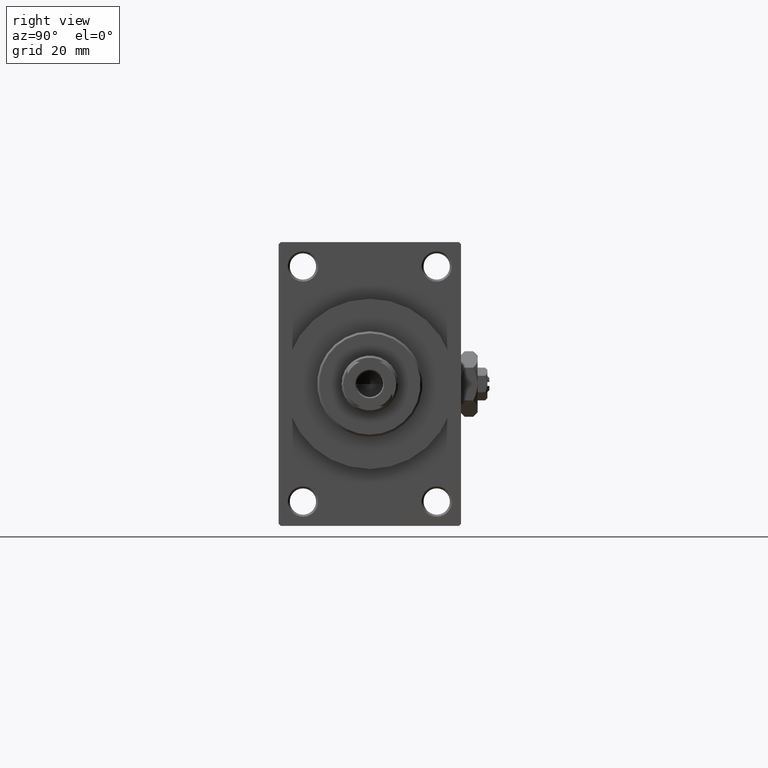
[diagram: clean part render]
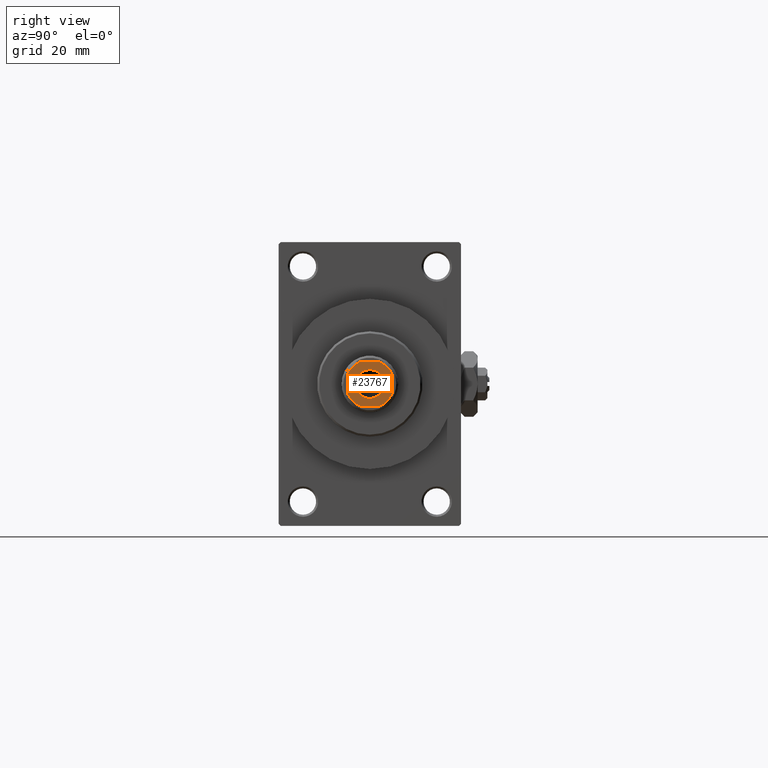
[diagram: same view with one face highlighted and labeled with its STEP entity id]
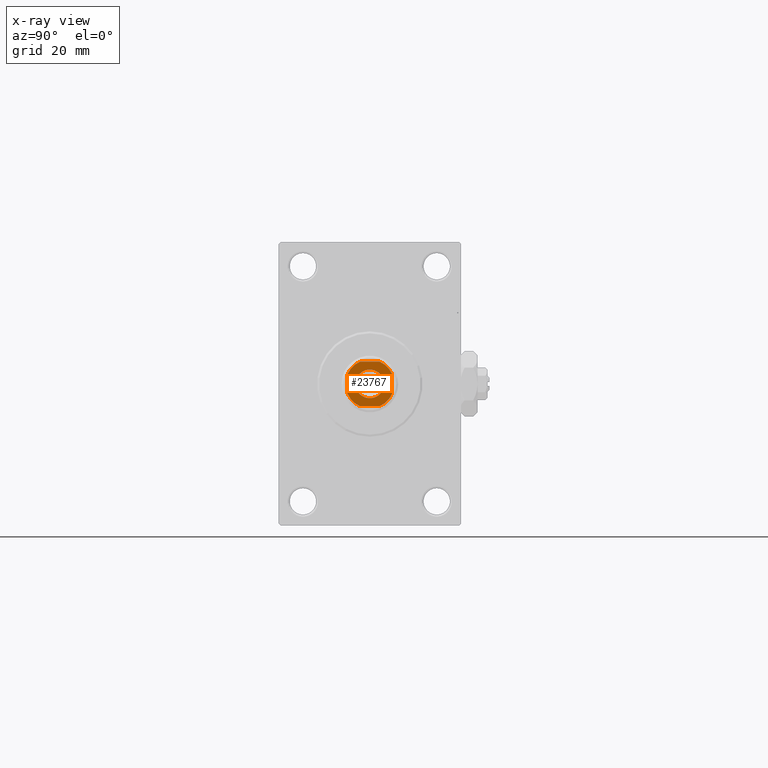
[diagram: x-ray of the same camera — body ghosted, the highlighted face saturated]
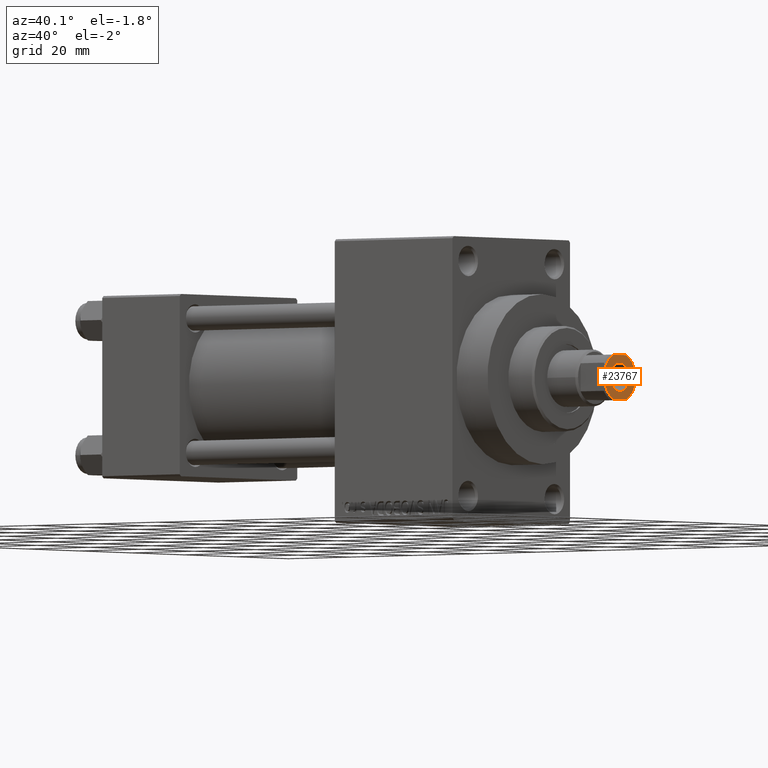
[diagram: same view with one face highlighted and labeled with its STEP entity id]
A machine part, right view. The second image highlights one B-rep face of the part: STEP entity #23767.
The next image is the same camera in x-ray: the body ghosted, the highlighted face saturated — about 0% of this face is hidden behind the body in this view.
A second angle (auxiliary view) of the same face is appended — the face is thin or edge-on in the first view.
In plain terms, the highlighted planar face has unit normal (1, 0, 0).
Its self-contained STEP definition (entity closure, byte-faithful):
#54 = VERTEX_POINT ( 'NONE', #23593 ) ;
#1730 = EDGE_CURVE ( 'NONE', #22571, #32382, #10138, .T. ) ;
#1825 = DIRECTION ( 'NONE',  ( -0.000000000000000000, 0.000000000000000000, 1.000000000000000000 ) ) ;
#1903 = FACE_BOUND ( 'NONE', #47159, .T. ) ;
#3432 = VECTOR ( 'NONE', #25303, 1000.000000000000000 ) ;
#4090 = VECTOR ( 'NONE', #30186, 1000.000000000000000 ) ;
#4258 = DIRECTION ( 'NONE',  ( 1.000000000000000000, 0.000000000000000000, 0.000000000000000000 ) ) ;
#4661 = AXIS2_PLACEMENT_3D ( 'NONE', #23132, #8953, #4258 ) ;
#4879 = ORIENTED_EDGE ( 'NONE', *, *, #21666, .T. ) ;
#6413 = EDGE_CURVE ( 'NONE', #22238, #14577, #41675, .T. ) ;
#6485 = VERTEX_POINT ( 'NONE', #7266 ) ;
#6564 = EDGE_CURVE ( 'NONE', #14577, #26650, #31817, .T. ) ;
#7266 = CARTESIAN_POINT ( 'NONE',  ( -3.550000000000011813, 4.347496136973118171E-16, 123.0000000000000000 ) ) ;
#8901 = DIRECTION ( 'NONE',  ( 1.000000000000000000, 0.000000000000000000, 0.000000000000000000 ) ) ;
#8953 = DIRECTION ( 'NONE',  ( -0.000000000000000000, 0.000000000000000000, 1.000000000000000000 ) ) ;
#8997 = EDGE_CURVE ( 'NONE', #26650, #22571, #28952, .T. ) ;
#10138 = LINE ( 'NONE', #14353, #3432 ) ;
#10218 = LINE ( 'NONE', #29571, #19468 ) ;
#10341 = CARTESIAN_POINT ( 'NONE',  ( 5.499999999999999112, 5.500000000000000888, 123.0000000000000000 ) ) ;
#10370 = ORIENTED_EDGE ( 'NONE', *, *, #8997, .T. ) ;
#10835 = ORIENTED_EDGE ( 'NONE', *, *, #19726, .T. ) ;
#10928 = VERTEX_POINT ( 'NONE', #22719 ) ;
#11171 = CARTESIAN_POINT ( 'NONE',  ( -2.397915761656381761, -5.500000000000000000, 123.0000000000000000 ) ) ;
#12619 = CARTESIAN_POINT ( 'NONE',  ( 0.000000000000000000, 0.000000000000000000, 123.0000000000000000 ) ) ;
#13380 = CIRCLE ( 'NONE', #4661, 6.000000000000008882 ) ;
#13566 = FACE_OUTER_BOUND ( 'NONE', #33214, .T. ) ;
#14353 = CARTESIAN_POINT ( 'NONE',  ( -5.499999999999999112, -5.500000000000000000, 123.0000000000000000 ) ) ;
#14577 = VERTEX_POINT ( 'NONE', #26054 ) ;
#15548 = CARTESIAN_POINT ( 'NONE',  ( 0.000000000000000000, 0.000000000000000000, 123.0000000000000000 ) ) ;
#16920 = ORIENTED_EDGE ( 'NONE', *, *, #1730, .T. ) ;
#17037 = PLANE ( 'NONE',  #37228 ) ;
#17826 = CARTESIAN_POINT ( 'NONE',  ( 0.000000000000000000, 0.000000000000000000, 123.0000000000000000 ) ) ;
#19468 = VECTOR ( 'NONE', #44716, 1000.000000000000000 ) ;
#19726 = EDGE_CURVE ( 'NONE', #46714, #6485, #22203, .T. ) ;
#19824 = AXIS2_PLACEMENT_3D ( 'NONE', #17826, #28773, #47401 ) ;
#21666 = EDGE_CURVE ( 'NONE', #32382, #54, #13380, .T. ) ;
#22203 = CIRCLE ( 'NONE', #19824, 3.550000000000011813 ) ;
#22238 = VERTEX_POINT ( 'NONE', #37052 ) ;
#22571 = VERTEX_POINT ( 'NONE', #11171 ) ;
#22719 = CARTESIAN_POINT ( 'NONE',  ( 2.397915761656340017, 5.500000000000000888, 123.0000000000000000 ) ) ;
#23132 = CARTESIAN_POINT ( 'NONE',  ( 0.000000000000000000, 0.000000000000000000, 123.0000000000000000 ) ) ;
#23593 = CARTESIAN_POINT ( 'NONE',  ( 5.500000000000000000, -2.397915761656381761, 123.0000000000000000 ) ) ;
#23767 = ADVANCED_FACE ( 'NONE', ( #1903, #13566 ), #17037, .T. ) ;
#24315 = CIRCLE ( 'NONE', #30642, 3.550000000000011813 ) ;
#24374 = DIRECTION ( 'NONE',  ( 1.577021341797097560E-16, -1.000000000000000000, 0.000000000000000000 ) ) ;
#24380 = CIRCLE ( 'NONE', #31489, 5.999999999999992006 ) ;
#24422 = DIRECTION ( 'NONE',  ( 1.000000000000000000, 0.000000000000000000, 0.000000000000000000 ) ) ;
#25303 = DIRECTION ( 'NONE',  ( 1.000000000000000000, 0.000000000000000000, 0.000000000000000000 ) ) ;
#26054 = CARTESIAN_POINT ( 'NONE',  ( -5.500000000000000000, 2.397915761656292499, 123.0000000000000000 ) ) ;
#26650 = VERTEX_POINT ( 'NONE', #41072 ) ;
#27570 = EDGE_CURVE ( 'NONE', #10928, #22238, #10218, .T. ) ;
#28272 = DIRECTION ( 'NONE',  ( -0.000000000000000000, 0.000000000000000000, 1.000000000000000000 ) ) ;
#28325 = DIRECTION ( 'NONE',  ( 0.000000000000000000, -0.000000000000000000, -1.000000000000000000 ) ) ;
#28356 = VERTEX_POINT ( 'NONE', #33310 ) ;
#28773 = DIRECTION ( 'NONE',  ( 0.000000000000000000, -0.000000000000000000, -1.000000000000000000 ) ) ;
#28952 = CIRCLE ( 'NONE', #32098, 6.000000000000008882 ) ;
#29571 = CARTESIAN_POINT ( 'NONE',  ( -5.500000000000000888, 5.500000000000000000, 123.0000000000000000 ) ) ;
#30186 = DIRECTION ( 'NONE',  ( -1.577021341797097560E-16, 1.000000000000000000, -0.000000000000000000 ) ) ;
#30291 = ORIENTED_EDGE ( 'NONE', *, *, #48401, .T. ) ;
#30307 = EDGE_CURVE ( 'NONE', #6485, #46714, #24315, .T. ) ;
#30642 = AXIS2_PLACEMENT_3D ( 'NONE', #47192, #28325, #36004 ) ;
#31072 = CARTESIAN_POINT ( 'NONE',  ( -5.500000000000000888, 5.500000000000000000, 123.0000000000000000 ) ) ;
#31489 = AXIS2_PLACEMENT_3D ( 'NONE', #12619, #28272, #8901 ) ;
#31817 = LINE ( 'NONE', #31072, #34504 ) ;
#32098 = AXIS2_PLACEMENT_3D ( 'NONE', #15548, #1825, #24422 ) ;
#32382 = VERTEX_POINT ( 'NONE', #45731 ) ;
#33214 = EDGE_LOOP ( 'NONE', ( #30291, #42755, #42341, #48443, #40152, #10370, #16920, #4879 ) ) ;
#33310 = CARTESIAN_POINT ( 'NONE',  ( 5.500000000000000000, 2.397915761656341793, 123.0000000000000000 ) ) ;
#34504 = VECTOR ( 'NONE', #24374, 1000.000000000000000 ) ;
#34548 = CARTESIAN_POINT ( 'NONE',  ( 0.000000000000000000, 0.000000000000000000, 123.0000000000000000 ) ) ;
#34788 = EDGE_CURVE ( 'NONE', #28356, #10928, #24380, .T. ) ;
#35299 = CARTESIAN_POINT ( 'NONE',  ( 3.550000000000011813, 0.000000000000000000, 123.0000000000000000 ) ) ;
#36004 = DIRECTION ( 'NONE',  ( 1.000000000000000000, 0.000000000000000000, 0.000000000000000000 ) ) ;
#37052 = CARTESIAN_POINT ( 'NONE',  ( -2.397915761656291167, 5.500000000000000888, 123.0000000000000000 ) ) ;
#37228 = AXIS2_PLACEMENT_3D ( 'NONE', #47594, #40141, #43856 ) ;
#40141 = DIRECTION ( 'NONE',  ( -0.000000000000000000, 0.000000000000000000, 1.000000000000000000 ) ) ;
#40152 = ORIENTED_EDGE ( 'NONE', *, *, #6564, .T. ) ;
#41072 = CARTESIAN_POINT ( 'NONE',  ( -5.500000000000000000, -2.397915761656382649, 123.0000000000000000 ) ) ;
#41525 = DIRECTION ( 'NONE',  ( 1.000000000000000000, 0.000000000000000000, 0.000000000000000000 ) ) ;
#41675 = CIRCLE ( 'NONE', #48028, 5.999999999999973355 ) ;
#42018 = DIRECTION ( 'NONE',  ( -0.000000000000000000, 0.000000000000000000, 1.000000000000000000 ) ) ;
#42341 = ORIENTED_EDGE ( 'NONE', *, *, #27570, .T. ) ;
#42755 = ORIENTED_EDGE ( 'NONE', *, *, #34788, .T. ) ;
#43856 = DIRECTION ( 'NONE',  ( 1.000000000000000000, 0.000000000000000000, 0.000000000000000000 ) ) ;
#44716 = DIRECTION ( 'NONE',  ( -1.000000000000000000, -7.885106708985487801E-17, -0.000000000000000000 ) ) ;
#45731 = CARTESIAN_POINT ( 'NONE',  ( 2.397915761656381761, -5.500000000000000000, 123.0000000000000000 ) ) ;
#45831 = ORIENTED_EDGE ( 'NONE', *, *, #30307, .T. ) ;
#46714 = VERTEX_POINT ( 'NONE', #35299 ) ;
#47159 = EDGE_LOOP ( 'NONE', ( #10835, #45831 ) ) ;
#47192 = CARTESIAN_POINT ( 'NONE',  ( 0.000000000000000000, 0.000000000000000000, 123.0000000000000000 ) ) ;
#47401 = DIRECTION ( 'NONE',  ( 1.000000000000000000, 0.000000000000000000, 0.000000000000000000 ) ) ;
#47594 = CARTESIAN_POINT ( 'NONE',  ( 0.000000000000000000, 0.000000000000000000, 123.0000000000000000 ) ) ;
#48028 = AXIS2_PLACEMENT_3D ( 'NONE', #34548, #42018, #41525 ) ;
#48401 = EDGE_CURVE ( 'NONE', #54, #28356, #49073, .T. ) ;
#48443 = ORIENTED_EDGE ( 'NONE', *, *, #6413, .T. ) ;
#49073 = LINE ( 'NONE', #10341, #4090 ) ;